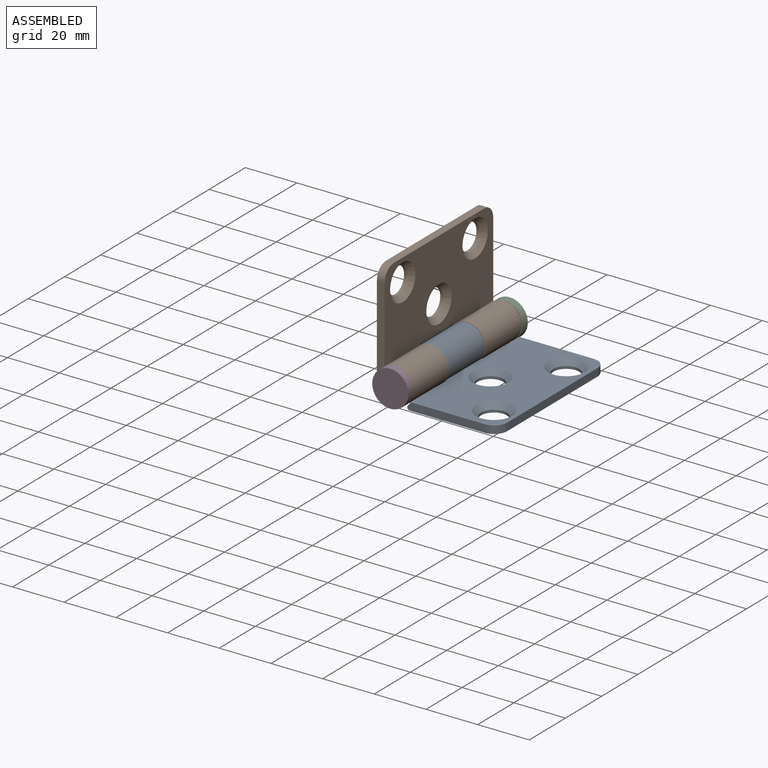
[diagram: assembled view]
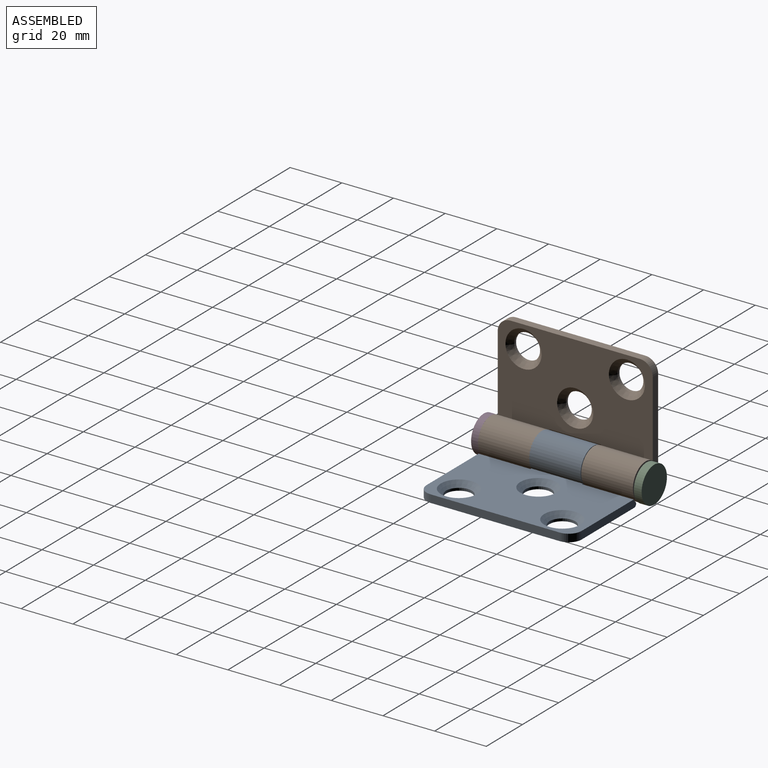
[diagram: assembled view, second angle]
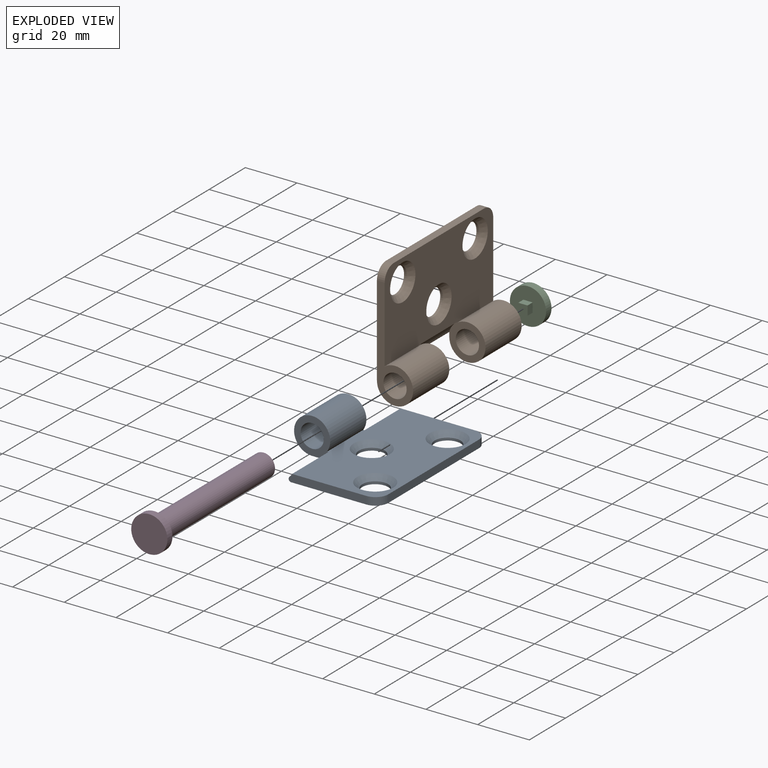
[diagram: exploded view]
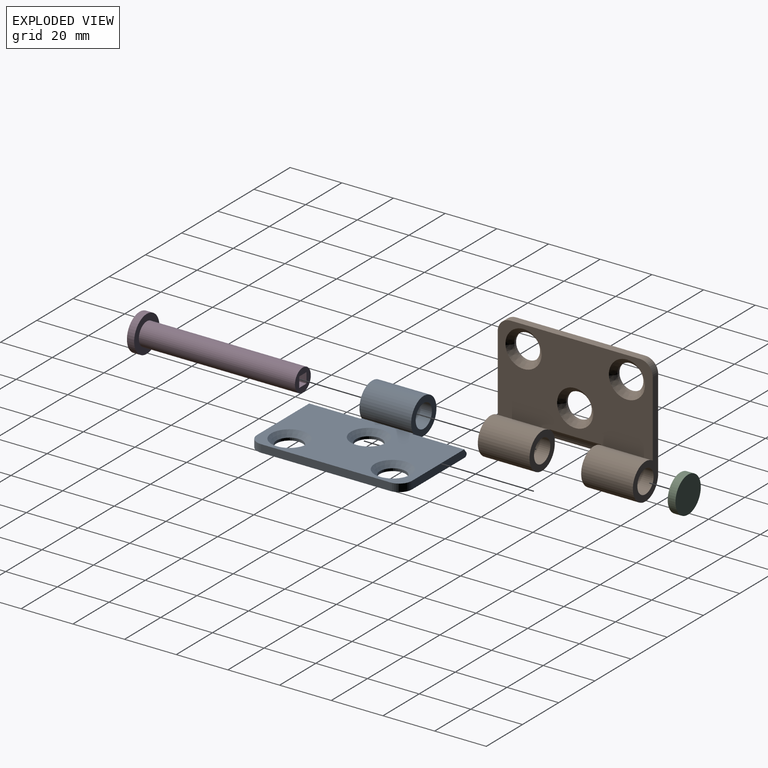
[diagram: exploded view, second angle]
ASSEMBLY  parts=4 mates=3
PART A: 21 faces, bbox 47x60x14 mm
  f0: cylinder r=7mm len=20mm, axis (0,1,0), area 744.9mm2, adj f1,f3,f9,f11
  f1: plane 60x40mm, normal (0,0,-1), area 1917.9mm2, adj f0,f2,f4,f5,f6,f7,f8,f9
  f2: plane 50x3mm, normal (1,0,0), area 150mm2, adj f1,f3,f19,f20
  f3: plane 60x34.26mm, normal (0,0,1), area 1563mm2, adj f0,f2,f4,f5,f9,f10,f11,f12
  f4: plane 30.11x3mm, normal (0,-1,0), area 88.9mm2, adj f1,f3,f10,f14,f20
  f5: plane 30.11x3mm, normal (0,1,0), area 88.9mm2, adj f1,f3,f12,f15,f19
  f6: cylinder r=5mm len=10mm, axis (0,0,1), area 31.4mm2, adj f1,f18
  f7: cylinder r=5mm len=10mm, axis (0,0,1), area 31.4mm2, adj f1,f17
  f8: cylinder r=5mm len=10mm, axis (0,0,1), area 31.4mm2, adj f1,f16
  f9: plane 14x14mm, normal (0,-1,0), area 94.3mm2, adj f0,f1,f3,f10,f13,f14
  f10: cylinder r=7.41mm len=20mm, axis (0,-1,0), area 33.2mm2, adj f3,f4,f9,f14
  f11: plane 14x14mm, normal (0,1,0), area 94.3mm2, adj f0,f1,f3,f12,f13,f15
  f12: cylinder r=7.41mm len=20mm, axis (0,-1,0), area 33.2mm2, adj f3,f5,f11,f15
  f13: cylinder r=4.5mm len=20mm, axis (0,1,0), area 565.5mm2, adj f9,f11
  f14: cylinder r=1mm len=20mm, axis (0,-1,0), area 47.3mm2, adj f1,f4,f9,f10
  f15: cylinder r=1mm len=20mm, axis (0,-1,0), area 47.3mm2, adj f1,f5,f11,f12
  f16: cone r=5mm half-angle=45deg, axis (0,0,1), area 106.6mm2, adj f3,f8
  f17: cone r=5mm half-angle=45deg, axis (0,0,1), area 106.6mm2, adj f3,f7
  f18: cone r=5mm half-angle=45deg, axis (0,0,1), area 106.6mm2, adj f3,f6
  f19: cylinder r=5mm len=5mm, axis (0,0,1), area 23.6mm2, adj f1,f2,f3,f5
  f20: cylinder r=5mm len=5mm, axis (0,0,-1), area 23.6mm2, adj f1,f2,f3,f4
PART B: 20 faces, bbox 47x60x14 mm
  f0: plane 60x40mm, normal (0,0,-1), area 2119mm2, adj f3,f4,f6,f7,f8,f9,f10,f11
  f1: plane 60x34.26mm, normal (0,0,1), area 1577.7mm2, adj f3,f4,f6,f7,f8,f12,f13,f14
  f2: cylinder r=4.5mm len=20mm, axis (0,1,0), area 565.5mm2, adj f8,f13
  f3: cylinder r=7mm len=20mm, axis (0,1,0), area 744.9mm2, adj f0,f1,f8,f13
  f4: plane 50x3mm, normal (-1,0,0), area 150mm2, adj f0,f1,f18,f19
  f5: cylinder r=4.5mm len=20mm, axis (0,1,0), area 565.5mm2, adj f7,f14
  f6: cylinder r=7mm len=20mm, axis (0,1,0), area 744.9mm2, adj f0,f1,f7,f14
  f7: plane 42x14mm, normal (0,-1,0), area 183.2mm2, adj f0,f1,f5,f6,f19
  f8: plane 42x14mm, normal (0,1,0), area 183.2mm2, adj f0,f1,f2,f3,f18
  f9: cylinder r=5mm len=10mm, axis (0,0,1), area 31.4mm2, adj f0,f15
  f10: cylinder r=5mm len=10mm, axis (0,0,1), area 31.4mm2, adj f0,f17
  f11: cylinder r=5mm len=10mm, axis (0,0,1), area 31.4mm2, adj f0,f16
  f12: cylinder r=7.21mm len=20mm, axis (0,-1,0), area 106.8mm2, adj f0,f1,f13,f14
  f13: plane 14x14mm, normal (0,-1,0), area 91.5mm2, adj f0,f1,f2,f3,f12
  f14: plane 14x14mm, normal (0,1,0), area 91.5mm2, adj f0,f1,f5,f6,f12
  f15: cone r=7mm half-angle=45deg, axis (0,0,1), area 106.6mm2, adj f1,f9
  f16: cone r=7mm half-angle=45deg, axis (0,0,1), area 106.6mm2, adj f1,f11
  f17: cone r=7mm half-angle=45deg, axis (0,0,1), area 106.6mm2, adj f1,f10
  f18: cylinder r=5mm len=5mm, axis (0,0,1), area 23.6mm2, adj f0,f1,f4,f8
  f19: cylinder r=5mm len=5mm, axis (0,0,-1), area 23.6mm2, adj f0,f1,f4,f7
PART C: 8 faces, bbox 14x5.8x14 mm
  f0: plane 3.6x2.8mm, normal (0,0,-1), area 10.1mm2, adj f1,f3,f4,f5
  f1: plane 3.6x2.8mm, normal (-1,0,0), area 10.1mm2, adj f0,f2,f4,f5
  f2: plane 3.6x2.8mm, normal (0,0,1), area 10.1mm2, adj f1,f3,f4,f5
  f3: plane 3.6x2.8mm, normal (1,0,0), area 10.1mm2, adj f0,f2,f4,f5
  f4: plane 3.6x3.6mm, normal (0,-1,0), area 13mm2, adj f0,f1,f2,f3
  f5: plane 14x14mm, normal (0,-1,0), area 141mm2, adj f0,f1,f2,f3,f6
  f6: cylinder r=7mm len=14mm, axis (0,-1,0), area 131.9mm2, adj f5,f7
  f7: plane 14x14mm, normal (0,1,0), area 153.9mm2, adj f6
PART D: 10 faces, bbox 14x63.2x14 mm
  f0: plane 8.8x8.8mm, normal (0,1,0), area 44.8mm2, adj f1,f5,f6,f7,f8
  f1: cylinder r=4.4mm len=60.4mm, axis (0,-1,0), area 1669.8mm2, adj f0,f4
  f2: cylinder r=7mm len=14mm, axis (0,1,0), area 123.2mm2, adj f3,f4
  f3: plane 14x14mm, normal (0,-1,0), area 153.9mm2, adj f2
  f4: plane 14x14mm, normal (0,1,0), area 93.1mm2, adj f1,f2
  f5: plane 4x3mm, normal (0,0,1), area 12mm2, adj f0,f6,f8,f9
  f6: plane 4x3mm, normal (1,0,0), area 12mm2, adj f0,f5,f7,f9
  f7: plane 4x3mm, normal (0,0,-1), area 12mm2, adj f0,f6,f8,f9
  f8: plane 4x3mm, normal (-1,0,0), area 12mm2, adj f0,f5,f7,f9
  f9: plane 4x4mm, normal (0,1,0), area 16mm2, adj f5,f6,f7,f8
PLACE A t=(3.4,17.77,17.95)mm fixed
PLACE B rot(axis=(0,1,0),90deg) t=(-3.6,17.97,24.95)mm
PLACE C t=(3.4,18.17,17.75)mm
PLACE D t=(3.4,18.37,17.95)mm
MATE revolute D.f2 <-> B.f2  axis (0,1,0) through (3.4,-41.83,24.95)mm
MATE revolute B.f2 <-> A.f13  axis (0,-1,0) through (3.4,-2.03,24.95)mm
MATE fastened D.f2 <-> C.f4  axis (0,1,0) through (3.4,15.57,24.95)mm
